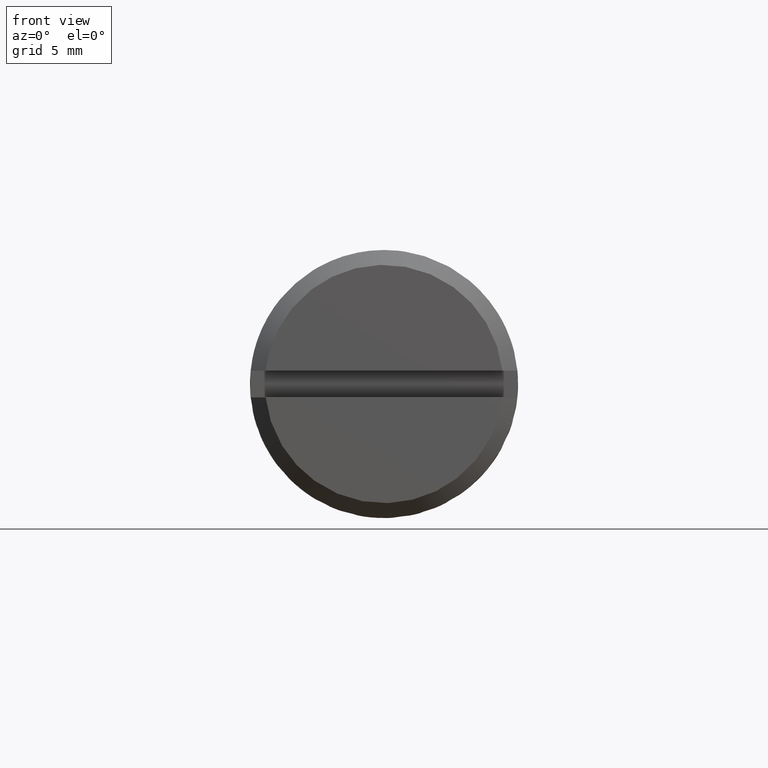
[diagram: clean part render]
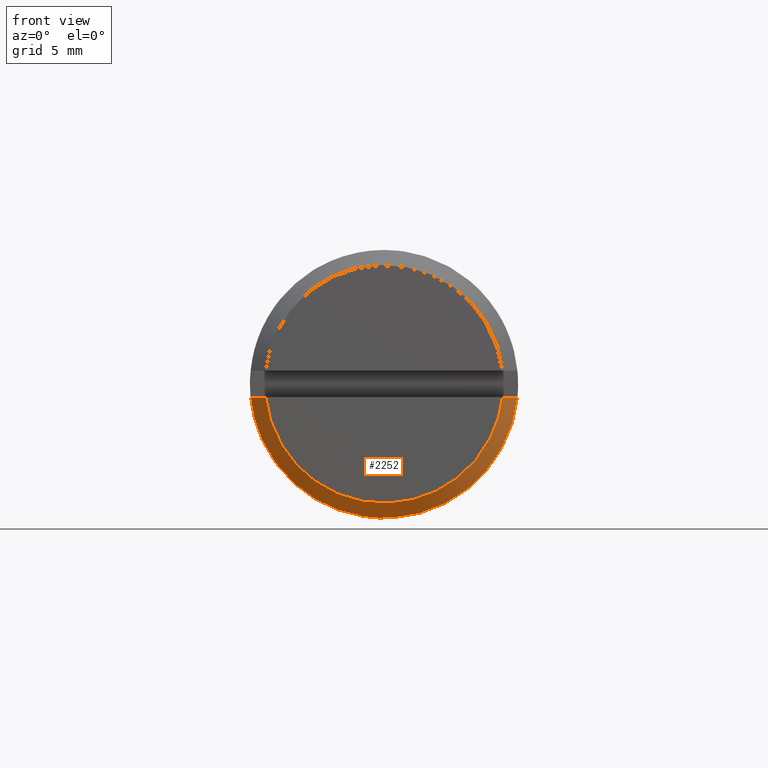
[diagram: same view with one face highlighted and labeled with its STEP entity id]
A machine part, front view. The second image highlights one B-rep face of the part: STEP entity #2252.
In plain terms, the highlighted face is a freeform B-spline surface patch.
Its self-contained STEP definition (entity closure, byte-faithful):
#1846=CARTESIAN_POINT('',(-10.999900000000000,-8.954886933959578,-0.900000000000000));
#1847=VERTEX_POINT('',#1846);
#1853=CARTESIAN_POINT('',(-10.999900000000000,8.954886933959578,-0.900000000000000));
#1854=VERTEX_POINT('',#1853);
#1855=CARTESIAN_POINT('',(-10.999900000000000,-8.954886933959578,-0.899999999999998));
#1856=CARTESIAN_POINT('',(-10.999900000000000,-8.140806303599618,-9.0));
#1857=CARTESIAN_POINT('',(-10.999900000000000,0.0,-9.0));
#1858=CARTESIAN_POINT('',(-10.999900000000000,8.140806303599614,-9.0));
#1859=CARTESIAN_POINT('',(-10.999900000000000,8.954886933959578,-0.900000000000002));
#1867=(BOUNDED_CURVE()B_SPLINE_CURVE(2,(#1855,#1856,#1857,#1858,#1859),.UNSPECIFIED.,.F.,.U.)B_SPLINE_CURVE_WITH_KNOTS((3,2,3),(0.0,0.500000000000000,1.0),.UNSPECIFIED.)CURVE()GEOMETRIC_REPRESENTATION_ITEM()RATIONAL_B_SPLINE_CURVE((1.0,0.741619848709566,1.0,0.741619848709566,1.0))REPRESENTATION_ITEM(''));
#1868=EDGE_CURVE('',#1847,#1854,#1867,.T.);
#2055=CARTESIAN_POINT('',(-11.999900000000000,7.949213797602840,-0.900000000000000));
#2056=VERTEX_POINT('',#2055);
#2057=CARTESIAN_POINT('',(-11.999900000000000,7.949213797602840,-0.900000000000000));
#2058=CARTESIAN_POINT('',(-11.666687995180000,8.284558379157989,-0.900000000000000));
#2059=CARTESIAN_POINT('',(-11.333336515864641,8.619764780328605,-0.900000000000000));
#2060=CARTESIAN_POINT('',(-10.999900000000000,8.954886933959578,-0.900000000000000));
#2061=B_SPLINE_CURVE_WITH_KNOTS('',3,(#2057,#2058,#2059,#2060),.UNSPECIFIED.,.F.,.U.,(4,4),(0.941397994252912,1.0),.UNSPECIFIED.);
#2062=EDGE_CURVE('',#2056,#1854,#2061,.T.);
#2064=CARTESIAN_POINT('',(-11.999900000000000,-7.949213797602840,-0.900000000000000));
#2065=VERTEX_POINT('',#2064);
#2071=CARTESIAN_POINT('',(-10.999900000000000,-8.954886933959578,-0.900000000000000));
#2072=CARTESIAN_POINT('',(-11.333336230118860,-8.619764833145828,-0.900000000000000));
#2073=CARTESIAN_POINT('',(-11.666687782598601,-8.284558563938044,-0.900000000000000));
#2074=CARTESIAN_POINT('',(-11.999900000000000,-7.949213797602840,-0.900000000000000));
#2075=B_SPLINE_CURVE_WITH_KNOTS('',3,(#2071,#2072,#2073,#2074),.UNSPECIFIED.,.F.,.U.,(4,4),(0.0,0.058078857996080),.UNSPECIFIED.);
#2076=EDGE_CURVE('',#1847,#2065,#2075,.T.);
#2214=CARTESIAN_POINT('',(-12.024900000000001,7.957826184530194,-0.523094080262352));
#2215=CARTESIAN_POINT('',(-10.974275000000000,9.006188709310392,-0.592006396008513));
#2216=CARTESIAN_POINT('',(-12.024900000000004,7.457072541072671,-8.141055373012192));
#2217=CARTESIAN_POINT('',(-10.974274999999999,8.439465875049411,-9.213556476619838));
#2218=CARTESIAN_POINT('',(-12.024900000000001,-0.175480707677065,-7.973069140627908));
#2219=CARTESIAN_POINT('',(-10.974275000000000,-0.198598503100666,-9.023439769577404));
#2220=CARTESIAN_POINT('',(-12.024900000000004,-7.808033956426801,-7.805082908243622));
#2221=CARTESIAN_POINT('',(-10.974274999999999,-8.836662881250742,-8.833323062534969));
#2222=CARTESIAN_POINT('',(-12.024900000000001,-7.973134906456811,-0.172466702408956));
#2223=CARTESIAN_POINT('',(-10.974275000000000,-9.023514199384238,-0.195187433345434));
#2231=(BOUNDED_SURFACE()B_SPLINE_SURFACE(1,2,((#2214,#2216,#2218,#2220,#2222),(#2215,#2217,#2219,#2221,#2223)),.UNSPECIFIED.,.F.,.F.,.U.)B_SPLINE_SURFACE_WITH_KNOTS((2,2),(3,2,3),(0.0,1.0),(0.0,14.494816801974650,28.989633603949301),.UNSPECIFIED.)GEOMETRIC_REPRESENTATION_ITEM()RATIONAL_B_SPLINE_SURFACE(((1.0,0.722363962059756,1.0,0.722363962059756,1.0),(1.0,0.722363962059756,1.0,0.722363962059756,1.0)))REPRESENTATION_ITEM('')SURFACE());
#2232=ORIENTED_EDGE('',*,*,#1868,.F.);
#2233=ORIENTED_EDGE('',*,*,#2076,.T.);
#2234=CARTESIAN_POINT('',(-11.999900000000000,7.949213797602880,-0.900000000000000));
#2235=CARTESIAN_POINT('',(-11.999900000000000,7.145360716946408,-8.0));
#2236=CARTESIAN_POINT('',(-11.999900000000000,0.0,-8.0));
#2237=CARTESIAN_POINT('',(-11.999900000000000,-7.145360716946406,-8.0));
#2238=CARTESIAN_POINT('',(-11.999900000000000,-7.949213797602880,-0.900000000000004));
#2246=(BOUNDED_CURVE()B_SPLINE_CURVE(2,(#2234,#2235,#2236,#2237,#2238),.UNSPECIFIED.,.F.,.U.)B_SPLINE_CURVE_WITH_KNOTS((3,2,3),(0.0,0.500000000000000,1.0),.UNSPECIFIED.)CURVE()GEOMETRIC_REPRESENTATION_ITEM()RATIONAL_B_SPLINE_CURVE((1.0,0.745821694508815,1.0,0.745821694508815,1.0))REPRESENTATION_ITEM(''));
#2247=EDGE_CURVE('',#2056,#2065,#2246,.T.);
#2248=ORIENTED_EDGE('',*,*,#2247,.F.);
#2249=ORIENTED_EDGE('',*,*,#2062,.T.);
#2250=EDGE_LOOP('',(#2232,#2233,#2248,#2249));
#2251=FACE_OUTER_BOUND('',#2250,.T.);
#2252=ADVANCED_FACE('',(#2251),#2231,.T.);